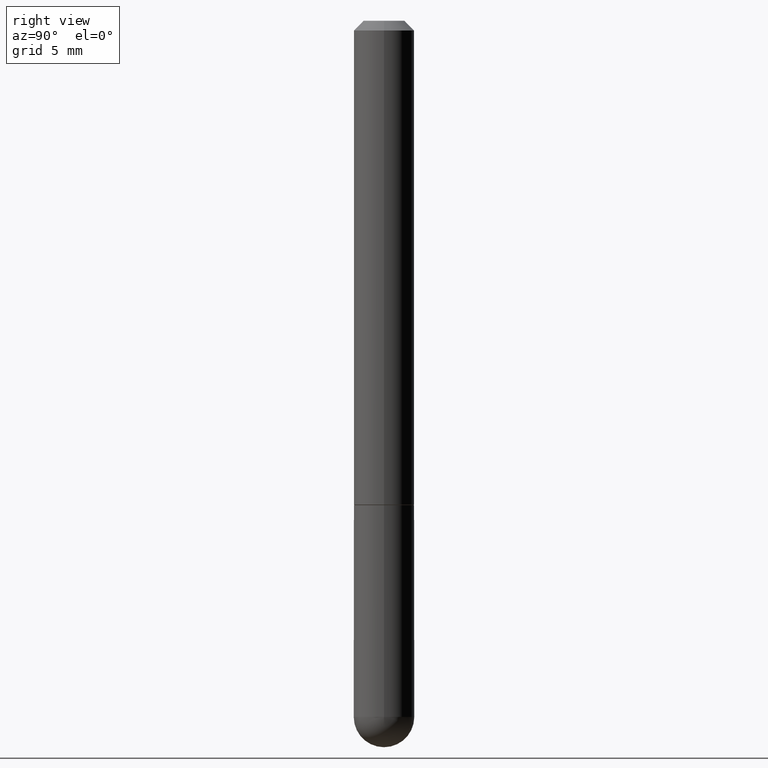
[diagram: clean part render]
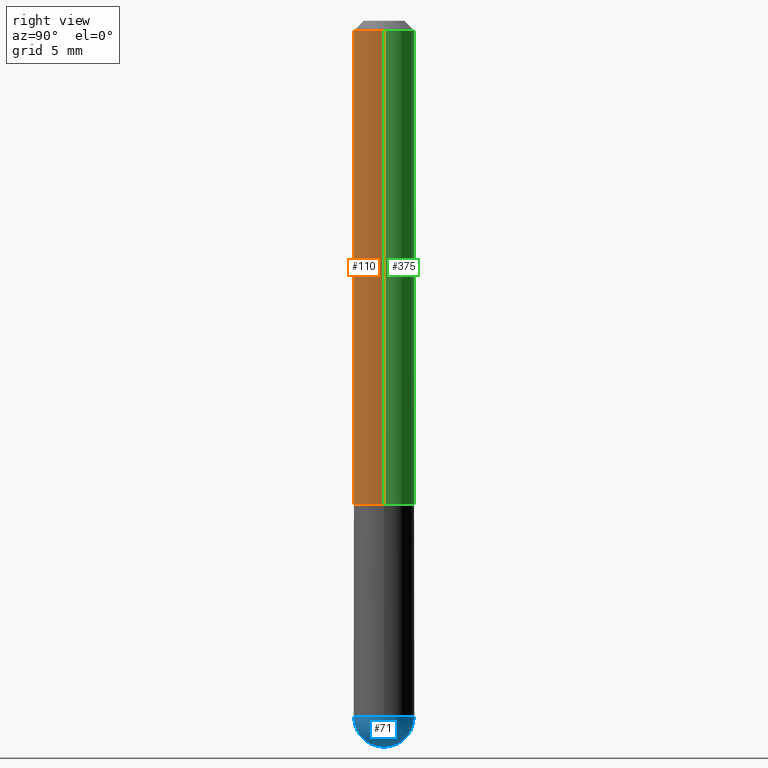
[diagram: same view with three faces highlighted in distinct colors, each labeled with its STEP entity id]
A machine part, right view with three faces highlighted in distinct colors.
Their STEP definitions:

[orange] entity #110 — the highlighted cylindrical surface (edge-blend (fillet) strip) has radius 1.5875 mm, axis along (-0, 0, 1).
#2 = CARTESIAN_POINT ( 'NONE',  ( 2.443023337378951835E-29, -3.487989857504302970E-15, -0.9990000000000002212 ) ) ;
#7 = EDGE_CURVE ( 'NONE', #371, #278, #324, .T. ) ;
#11 = VECTOR ( 'NONE', #305, 39.37007874015748143 ) ;
#12 = VECTOR ( 'NONE', #37, 39.37007874015748143 ) ;
#26 = AXIS2_PLACEMENT_3D ( 'NONE', #345, #369, #276 ) ;
#30 = ORIENTED_EDGE ( 'NONE', *, *, #364, .F. ) ;
#37 = DIRECTION ( 'NONE',  ( -2.445468806185136877E-29, 3.491481338843145188E-15, 1.000000000000000000 ) ) ;
#45 = CARTESIAN_POINT ( 'NONE',  ( 0.000000000000000000, 0.000000000000000000, 0.000000000000000000 ) ) ;
#46 = EDGE_CURVE ( 'NONE', #202, #258, #299, .T. ) ;
#67 = DIRECTION ( 'NONE',  ( -2.445468806185136597E-29, 3.491481338843145583E-15, 1.000000000000000000 ) ) ;
#92 = EDGE_CURVE ( 'NONE', #278, #258, #290, .T. ) ;
#93 = EDGE_LOOP ( 'NONE', ( #30, #229, #300, #363 ) ) ;
#95 = FACE_OUTER_BOUND ( 'NONE', #93, .T. ) ;
#110 = ADVANCED_FACE ( 'NONE', ( #95 ), #212, .T. ) ;
#160 = CARTESIAN_POINT ( 'NONE',  ( -0.06249999999999995143, 3.666055405785281740E-16, -0.02000000000000006981 ) ) ;
#161 = AXIS2_PLACEMENT_3D ( 'NONE', #2, #67, #228 ) ;
#167 = CARTESIAN_POINT ( 'NONE',  ( 0.06250000000000013878, -3.924425024859695428E-15, -0.9990000000000002212 ) ) ;
#168 = AXIS2_PLACEMENT_3D ( 'NONE', #45, #368, #210 ) ;
#175 = LINE ( 'NONE', #412, #12 ) ;
#202 = VERTEX_POINT ( 'NONE', #160 ) ;
#210 = DIRECTION ( 'NONE',  ( 1.000000000000000000, -6.982962677686266711E-15, 4.876176775795935793E-29 ) ) ;
#212 = CYLINDRICAL_SURFACE ( 'NONE', #168, 0.06250000000000004163 ) ;
#228 = DIRECTION ( 'NONE',  ( 1.000000000000000000, -6.982962677686270655E-15, 0.000000000000000000 ) ) ;
#229 = ORIENTED_EDGE ( 'NONE', *, *, #7, .T. ) ;
#246 = CARTESIAN_POINT ( 'NONE',  ( 0.06250000000000004163, -4.364351673553919652E-16, 3.047610484872461972E-30 ) ) ;
#258 = VERTEX_POINT ( 'NONE', #297 ) ;
#276 = DIRECTION ( 'NONE',  ( 1.000000000000000000, -6.982962677686266711E-15, 0.000000000000000000 ) ) ;
#278 = VERTEX_POINT ( 'NONE', #167 ) ;
#290 = LINE ( 'NONE', #246, #11 ) ;
#297 = CARTESIAN_POINT ( 'NONE',  ( 0.06249999999999995143, -4.986107516375835278E-16, -0.02000000000000006981 ) ) ;
#299 = CIRCLE ( 'NONE', #26, 0.06249999999999995143 ) ;
#300 = ORIENTED_EDGE ( 'NONE', *, *, #92, .T. ) ;
#305 = DIRECTION ( 'NONE',  ( -2.445468806185136877E-29, 3.491481338843145188E-15, 1.000000000000000000 ) ) ;
#324 = CIRCLE ( 'NONE', #161, 0.06250000000000013878 ) ;
#345 = CARTESIAN_POINT ( 'NONE',  ( 4.890937612370289799E-31, -6.982962677686315028E-17, -0.02000000000000006981 ) ) ;
#363 = ORIENTED_EDGE ( 'NONE', *, *, #46, .F. ) ;
#364 = EDGE_CURVE ( 'NONE', #371, #202, #175, .T. ) ;
#368 = DIRECTION ( 'NONE',  ( -2.445468806185136597E-29, 3.491481338843145583E-15, 1.000000000000000000 ) ) ;
#369 = DIRECTION ( 'NONE',  ( -2.445468806185136597E-29, 3.491481338843145583E-15, 1.000000000000000000 ) ) ;
#371 = VERTEX_POINT ( 'NONE', #385 ) ;
#385 = CARTESIAN_POINT ( 'NONE',  ( -0.06250000000000013878, -1.334820532290516771E-15, -0.9990000000000002212 ) ) ;
#412 = CARTESIAN_POINT ( 'NONE',  ( -0.06250000000000004163, 4.440892098500629120E-16, -3.074334431409318216E-30 ) ) ;

[blue] entity #71 — the highlighted spherical surface has radius 1.5875 mm.
#5 = AXIS2_PLACEMENT_3D ( 'NONE', #233, #230, #107 ) ;
#18 = DIRECTION ( 'NONE',  ( 6.982962677686265922E-15, 1.000000000000000000, -4.370956789862807739E-15 ) ) ;
#38 = DIRECTION ( 'NONE',  ( 1.000000000000000000, -6.982962677686265922E-15, 4.883557194083112340E-29 ) ) ;
#56 = EDGE_CURVE ( 'NONE', #207, #101, #408, .T. ) ;
#61 = VERTEX_POINT ( 'NONE', #187 ) ;
#71 = ADVANCED_FACE ( 'NONE', ( #312 ), #164, .T. ) ;
#84 = CARTESIAN_POINT ( 'NONE',  ( -4.440892098500294840E-16, -0.06250000000000532907, -1.437500000000000000 ) ) ;
#96 = ORIENTED_EDGE ( 'NONE', *, *, #237, .F. ) ;
#101 = VERTEX_POINT ( 'NONE', #84 ) ;
#107 = DIRECTION ( 'NONE',  ( 1.000000000000000000, -6.982962677686268288E-15, 0.000000000000000000 ) ) ;
#124 = DIRECTION ( 'NONE',  ( -1.000000000000000000, 7.105427357601001070E-15, -4.926315508542082329E-29 ) ) ;
#140 = CARTESIAN_POINT ( 'NONE',  ( 3.339755826017505008E-29, -5.707577355157432999E-15, -1.500000000000000222 ) ) ;
#150 = DIRECTION ( 'NONE',  ( -7.105427357601001859E-15, -1.000000000000000000, 0.000000000000000000 ) ) ;
#164 = SPHERICAL_SURFACE ( 'NONE', #358, 0.06250000000000018041 ) ;
#172 = EDGE_LOOP ( 'NONE', ( #272, #268, #96, #323 ) ) ;
#176 = AXIS2_PLACEMENT_3D ( 'NONE', #257, #124, #150 ) ;
#182 = CIRCLE ( 'NONE', #384, 0.06249999999999995143 ) ;
#185 = VERTEX_POINT ( 'NONE', #216 ) ;
#187 = CARTESIAN_POINT ( 'NONE',  ( 0.06249999999999995143, -4.691678049070475040E-15, -1.437500000000000222 ) ) ;
#192 = DIRECTION ( 'NONE',  ( -1.000000000000000000, 6.982962677686265922E-15, -4.883557194083112340E-29 ) ) ;
#194 = CARTESIAN_POINT ( 'NONE',  ( 3.515361408891134418E-29, -5.019004424587023131E-15, -1.437500000000000222 ) ) ;
#200 = CIRCLE ( 'NONE', #409, 0.06250000000000018041 ) ;
#207 = VERTEX_POINT ( 'NONE', #140 ) ;
#216 = CARTESIAN_POINT ( 'NONE',  ( 4.364351673554256397E-16, 0.06249999999999480971, -1.437500000000000444 ) ) ;
#230 = DIRECTION ( 'NONE',  ( -2.445468806185136597E-29, 3.491481338843145583E-15, 1.000000000000000000 ) ) ;
#231 = EDGE_CURVE ( 'NONE', #101, #61, #182, .T. ) ;
#233 = CARTESIAN_POINT ( 'NONE',  ( 3.515361408891134418E-29, -5.019004424587023131E-15, -1.437500000000000222 ) ) ;
#237 = EDGE_CURVE ( 'NONE', #61, #185, #263, .T. ) ;
#257 = CARTESIAN_POINT ( 'NONE',  ( 3.184241630977247611E-29, -5.493186792727071849E-15, -1.437500000000000000 ) ) ;
#262 = DIRECTION ( 'NONE',  ( 6.982962677686266711E-15, 1.000000000000000000, 0.000000000000000000 ) ) ;
#263 = CIRCLE ( 'NONE', #5, 0.06249999999999995143 ) ;
#268 = ORIENTED_EDGE ( 'NONE', *, *, #359, .T. ) ;
#271 = DIRECTION ( 'NONE',  ( -2.445468806185136597E-29, 3.491481338843145583E-15, 1.000000000000000000 ) ) ;
#272 = ORIENTED_EDGE ( 'NONE', *, *, #56, .F. ) ;
#282 = CARTESIAN_POINT ( 'NONE',  ( 3.184241630977247611E-29, -5.493186792727071849E-15, -1.437500000000000000 ) ) ;
#312 = FACE_OUTER_BOUND ( 'NONE', #172, .T. ) ;
#323 = ORIENTED_EDGE ( 'NONE', *, *, #231, .F. ) ;
#327 = CARTESIAN_POINT ( 'NONE',  ( 3.184241630977247611E-29, -5.493186792727071849E-15, -1.437500000000000000 ) ) ;
#354 = DIRECTION ( 'NONE',  ( 1.000000000000000000, -6.982962677686268288E-15, 0.000000000000000000 ) ) ;
#358 = AXIS2_PLACEMENT_3D ( 'NONE', #282, #192, #18 ) ;
#359 = EDGE_CURVE ( 'NONE', #207, #185, #200, .T. ) ;
#384 = AXIS2_PLACEMENT_3D ( 'NONE', #194, #271, #354 ) ;
#408 = CIRCLE ( 'NONE', #176, 0.06250000000000018041 ) ;
#409 = AXIS2_PLACEMENT_3D ( 'NONE', #327, #38, #262 ) ;

[green] entity #375 — the highlighted cylindrical surface (edge-blend (fillet) strip) has radius 1.5875 mm, axis along (-0, 0, 1).
#1 = CARTESIAN_POINT ( 'NONE',  ( 4.890937612370289799E-31, -6.982962677686315028E-17, -0.02000000000000006981 ) ) ;
#4 = ORIENTED_EDGE ( 'NONE', *, *, #326, .F. ) ;
#11 = VECTOR ( 'NONE', #305, 39.37007874015748143 ) ;
#12 = VECTOR ( 'NONE', #37, 39.37007874015748143 ) ;
#13 = DIRECTION ( 'NONE',  ( 1.000000000000000000, -6.982962677686266711E-15, 4.876176775795935793E-29 ) ) ;
#35 = AXIS2_PLACEMENT_3D ( 'NONE', #76, #83, #13 ) ;
#37 = DIRECTION ( 'NONE',  ( -2.445468806185136877E-29, 3.491481338843145188E-15, 1.000000000000000000 ) ) ;
#62 = CARTESIAN_POINT ( 'NONE',  ( 2.443023337378951835E-29, -3.487989857504302970E-15, -0.9990000000000002212 ) ) ;
#76 = CARTESIAN_POINT ( 'NONE',  ( 0.000000000000000000, 0.000000000000000000, 0.000000000000000000 ) ) ;
#83 = DIRECTION ( 'NONE',  ( -2.445468806185136597E-29, 3.491481338843145583E-15, 1.000000000000000000 ) ) ;
#89 = CIRCLE ( 'NONE', #142, 0.06249999999999995143 ) ;
#92 = EDGE_CURVE ( 'NONE', #278, #258, #290, .T. ) ;
#100 = FACE_OUTER_BOUND ( 'NONE', #402, .T. ) ;
#114 = CIRCLE ( 'NONE', #199, 0.06250000000000013878 ) ;
#133 = DIRECTION ( 'NONE',  ( -2.445468806185136597E-29, 3.491481338843145583E-15, 1.000000000000000000 ) ) ;
#139 = DIRECTION ( 'NONE',  ( 1.000000000000000000, -6.982962677686270655E-15, 0.000000000000000000 ) ) ;
#142 = AXIS2_PLACEMENT_3D ( 'NONE', #1, #361, #173 ) ;
#149 = ORIENTED_EDGE ( 'NONE', *, *, #364, .T. ) ;
#160 = CARTESIAN_POINT ( 'NONE',  ( -0.06249999999999995143, 3.666055405785281740E-16, -0.02000000000000006981 ) ) ;
#167 = CARTESIAN_POINT ( 'NONE',  ( 0.06250000000000013878, -3.924425024859695428E-15, -0.9990000000000002212 ) ) ;
#170 = ORIENTED_EDGE ( 'NONE', *, *, #281, .T. ) ;
#173 = DIRECTION ( 'NONE',  ( 1.000000000000000000, -6.982962677686266711E-15, 0.000000000000000000 ) ) ;
#175 = LINE ( 'NONE', #412, #12 ) ;
#199 = AXIS2_PLACEMENT_3D ( 'NONE', #62, #133, #139 ) ;
#202 = VERTEX_POINT ( 'NONE', #160 ) ;
#246 = CARTESIAN_POINT ( 'NONE',  ( 0.06250000000000004163, -4.364351673553919652E-16, 3.047610484872461972E-30 ) ) ;
#258 = VERTEX_POINT ( 'NONE', #297 ) ;
#278 = VERTEX_POINT ( 'NONE', #167 ) ;
#281 = EDGE_CURVE ( 'NONE', #278, #371, #114, .T. ) ;
#290 = LINE ( 'NONE', #246, #11 ) ;
#297 = CARTESIAN_POINT ( 'NONE',  ( 0.06249999999999995143, -4.986107516375835278E-16, -0.02000000000000006981 ) ) ;
#303 = CYLINDRICAL_SURFACE ( 'NONE', #35, 0.06250000000000004163 ) ;
#305 = DIRECTION ( 'NONE',  ( -2.445468806185136877E-29, 3.491481338843145188E-15, 1.000000000000000000 ) ) ;
#326 = EDGE_CURVE ( 'NONE', #258, #202, #89, .T. ) ;
#361 = DIRECTION ( 'NONE',  ( -2.445468806185136597E-29, 3.491481338843145583E-15, 1.000000000000000000 ) ) ;
#364 = EDGE_CURVE ( 'NONE', #371, #202, #175, .T. ) ;
#371 = VERTEX_POINT ( 'NONE', #385 ) ;
#375 = ADVANCED_FACE ( 'NONE', ( #100 ), #303, .T. ) ;
#385 = CARTESIAN_POINT ( 'NONE',  ( -0.06250000000000013878, -1.334820532290516771E-15, -0.9990000000000002212 ) ) ;
#386 = ORIENTED_EDGE ( 'NONE', *, *, #92, .F. ) ;
#402 = EDGE_LOOP ( 'NONE', ( #170, #149, #4, #386 ) ) ;
#412 = CARTESIAN_POINT ( 'NONE',  ( -0.06250000000000004163, 4.440892098500629120E-16, -3.074334431409318216E-30 ) ) ;